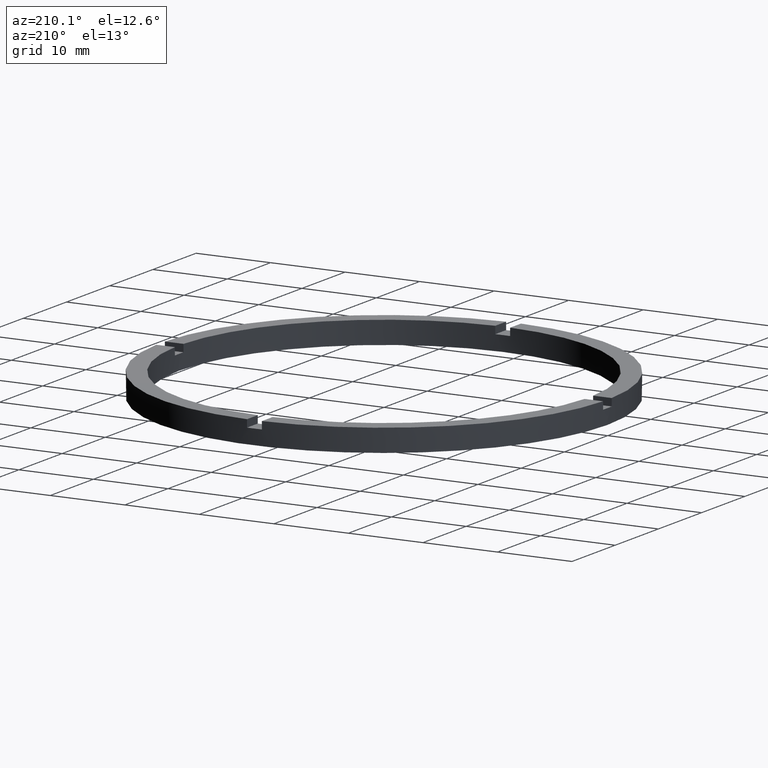
[diagram: clean part render]
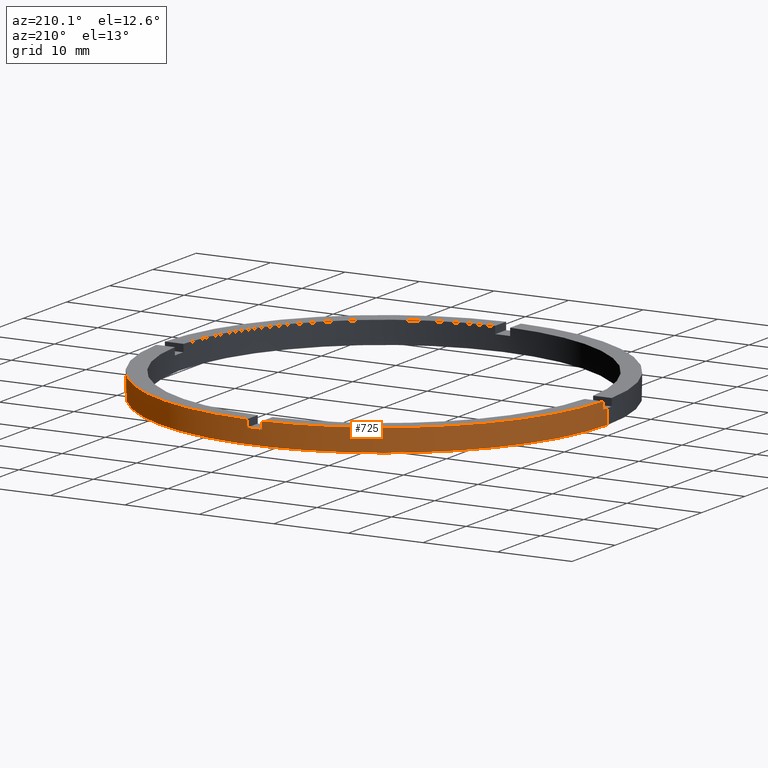
[diagram: same view with one face highlighted and labeled with its STEP entity id]
A machine part, auxiliary view. The second image highlights one B-rep face of the part: STEP entity #725.
In plain terms, the highlighted cylindrical surface (partial cylindrical patch) has radius 30 mm, axis along (-0, -0, -1).
Its self-contained STEP definition (entity closure, byte-faithful):
#4 = CARTESIAN_POINT ( 'NONE',  ( 0.000000000000000000, 0.000000000000000000, 0.000000000000000000 ) ) ;
#11 = DIRECTION ( 'NONE',  ( 0.000000000000000000, 0.000000000000000000, 1.000000000000000000 ) ) ;
#18 = EDGE_CURVE ( 'NONE', #130, #411, #672, .T. ) ;
#19 = CARTESIAN_POINT ( 'NONE',  ( 0.9999999999999729106, 29.98332870112989923, 3.000000000000000000 ) ) ;
#23 = AXIS2_PLACEMENT_3D ( 'NONE', #482, #76, #261 ) ;
#25 = AXIS2_PLACEMENT_3D ( 'NONE', #4, #469, #262 ) ;
#30 = EDGE_CURVE ( 'NONE', #235, #488, #166, .T. ) ;
#53 = VECTOR ( 'NONE', #210, 1000.000000000000000 ) ;
#66 = DIRECTION ( 'NONE',  ( 1.000000000000000000, 0.000000000000000000, 0.000000000000000000 ) ) ;
#68 = DIRECTION ( 'NONE',  ( 0.000000000000000000, 0.000000000000000000, 1.000000000000000000 ) ) ;
#76 = DIRECTION ( 'NONE',  ( 0.000000000000000000, -0.000000000000000000, 1.000000000000000000 ) ) ;
#83 = EDGE_CURVE ( 'NONE', #130, #638, #193, .T. ) ;
#103 = EDGE_CURVE ( 'NONE', #160, #745, #698, .T. ) ;
#110 = EDGE_CURVE ( 'NONE', #661, #235, #437, .T. ) ;
#130 = VERTEX_POINT ( 'NONE', #271 ) ;
#135 = CARTESIAN_POINT ( 'NONE',  ( 0.000000000000000000, 0.000000000000000000, 3.000000000000000000 ) ) ;
#146 = AXIS2_PLACEMENT_3D ( 'NONE', #590, #11, #237 ) ;
#150 = ORIENTED_EDGE ( 'NONE', *, *, #350, .F. ) ;
#156 = CARTESIAN_POINT ( 'NONE',  ( 30.00000000000000000, 3.673940397442059178E-15, 3.000000000000000000 ) ) ;
#160 = VERTEX_POINT ( 'NONE', #365 ) ;
#161 = ORIENTED_EDGE ( 'NONE', *, *, #634, .F. ) ;
#166 = CIRCLE ( 'NONE', #25, 30.00000000000000000 ) ;
#193 = CIRCLE ( 'NONE', #146, 30.00000000000000000 ) ;
#208 = VERTEX_POINT ( 'NONE', #587 ) ;
#210 = DIRECTION ( 'NONE',  ( -0.000000000000000000, -0.000000000000000000, -1.000000000000000000 ) ) ;
#219 = DIRECTION ( 'NONE',  ( 0.000000000000000000, 0.000000000000000000, 1.000000000000000000 ) ) ;
#235 = VERTEX_POINT ( 'NONE', #623 ) ;
#237 = DIRECTION ( 'NONE',  ( 1.000000000000000000, 0.000000000000000000, 0.000000000000000000 ) ) ;
#240 = ORIENTED_EDGE ( 'NONE', *, *, #18, .T. ) ;
#254 = CARTESIAN_POINT ( 'NONE',  ( 29.98332870112990278, 0.9999999999998439026, 3.000000000000000000 ) ) ;
#261 = DIRECTION ( 'NONE',  ( 1.000000000000000000, 0.000000000000000000, 0.000000000000000000 ) ) ;
#262 = DIRECTION ( 'NONE',  ( 1.000000000000000000, 0.000000000000000000, 0.000000000000000000 ) ) ;
#267 = EDGE_CURVE ( 'NONE', #666, #208, #447, .T. ) ;
#271 = CARTESIAN_POINT ( 'NONE',  ( 29.98332870112990278, 0.9999999999998439026, 3.000000000000000000 ) ) ;
#276 = CIRCLE ( 'NONE', #23, 30.00000000000000000 ) ;
#280 = FACE_OUTER_BOUND ( 'NONE', #692, .T. ) ;
#283 = DIRECTION ( 'NONE',  ( 0.000000000000000000, 0.000000000000000000, 1.000000000000000000 ) ) ;
#287 = DIRECTION ( 'NONE',  ( 1.000000000000000000, 0.000000000000000000, 0.000000000000000000 ) ) ;
#291 = DIRECTION ( 'NONE',  ( -0.000000000000000000, -0.000000000000000000, -1.000000000000000000 ) ) ;
#292 = CARTESIAN_POINT ( 'NONE',  ( -1.000000000000027089, 29.98332870112989568, 2.000000000000000000 ) ) ;
#293 = CARTESIAN_POINT ( 'NONE',  ( -29.98332870112989923, 0.9999999999999718003, 3.000000000000000000 ) ) ;
#309 = AXIS2_PLACEMENT_3D ( 'NONE', #611, #368, #574 ) ;
#310 = LINE ( 'NONE', #740, #53 ) ;
#312 = CIRCLE ( 'NONE', #662, 30.00000000000000000 ) ;
#325 = CARTESIAN_POINT ( 'NONE',  ( 30.00000000000000000, 3.673940397442059178E-15, 2.000000000000000000 ) ) ;
#345 = DIRECTION ( 'NONE',  ( -0.000000000000000000, -0.000000000000000000, -1.000000000000000000 ) ) ;
#350 = EDGE_CURVE ( 'NONE', #753, #208, #312, .T. ) ;
#356 = AXIS2_PLACEMENT_3D ( 'NONE', #704, #68, #66 ) ;
#360 = EDGE_CURVE ( 'NONE', #753, #745, #310, .T. ) ;
#365 = CARTESIAN_POINT ( 'NONE',  ( 0.9999999999999729106, 29.98332870112989923, 2.000000000000000000 ) ) ;
#368 = DIRECTION ( 'NONE',  ( -0.000000000000000000, -0.000000000000000000, -1.000000000000000000 ) ) ;
#389 = EDGE_CURVE ( 'NONE', #666, #477, #564, .T. ) ;
#408 = CARTESIAN_POINT ( 'NONE',  ( 29.98332870112990278, 0.9999999999998439026, 2.000000000000000000 ) ) ;
#411 = VERTEX_POINT ( 'NONE', #408 ) ;
#416 = DIRECTION ( 'NONE',  ( -0.000000000000000000, -0.000000000000000000, -1.000000000000000000 ) ) ;
#421 = ORIENTED_EDGE ( 'NONE', *, *, #389, .F. ) ;
#428 = VECTOR ( 'NONE', #416, 1000.000000000000000 ) ;
#429 = VECTOR ( 'NONE', #345, 1000.000000000000000 ) ;
#430 = ORIENTED_EDGE ( 'NONE', *, *, #267, .T. ) ;
#434 = ORIENTED_EDGE ( 'NONE', *, *, #83, .F. ) ;
#437 = LINE ( 'NONE', #156, #429 ) ;
#440 = CARTESIAN_POINT ( 'NONE',  ( -29.98332870112989923, 0.9999999999999718003, 2.000000000000000000 ) ) ;
#441 = CARTESIAN_POINT ( 'NONE',  ( -1.000000000000027089, 29.98332870112989568, 3.000000000000000000 ) ) ;
#447 = LINE ( 'NONE', #293, #617 ) ;
#469 = DIRECTION ( 'NONE',  ( 0.000000000000000000, 0.000000000000000000, 1.000000000000000000 ) ) ;
#477 = VERTEX_POINT ( 'NONE', #645 ) ;
#482 = CARTESIAN_POINT ( 'NONE',  ( 0.000000000000000000, 0.000000000000000000, 2.000000000000000000 ) ) ;
#486 = ORIENTED_EDGE ( 'NONE', *, *, #555, .T. ) ;
#488 = VERTEX_POINT ( 'NONE', #719 ) ;
#500 = VECTOR ( 'NONE', #291, 1000.000000000000000 ) ;
#502 = LINE ( 'NONE', #619, #500 ) ;
#513 = VECTOR ( 'NONE', #283, 1000.000000000000000 ) ;
#517 = ORIENTED_EDGE ( 'NONE', *, *, #360, .T. ) ;
#522 = AXIS2_PLACEMENT_3D ( 'NONE', #630, #596, #776 ) ;
#555 = EDGE_CURVE ( 'NONE', #160, #638, #781, .T. ) ;
#564 = CIRCLE ( 'NONE', #356, 30.00000000000000000 ) ;
#574 = DIRECTION ( 'NONE',  ( -1.000000000000000000, 0.000000000000000000, 0.000000000000000000 ) ) ;
#577 = EDGE_CURVE ( 'NONE', #477, #488, #502, .T. ) ;
#579 = CARTESIAN_POINT ( 'NONE',  ( 0.9999999999999729106, 29.98332870112989923, 3.000000000000000000 ) ) ;
#587 = CARTESIAN_POINT ( 'NONE',  ( -29.98332870112989923, 0.9999999999999718003, 3.000000000000000000 ) ) ;
#590 = CARTESIAN_POINT ( 'NONE',  ( 0.000000000000000000, 0.000000000000000000, 3.000000000000000000 ) ) ;
#596 = DIRECTION ( 'NONE',  ( 0.000000000000000000, -0.000000000000000000, 1.000000000000000000 ) ) ;
#611 = CARTESIAN_POINT ( 'NONE',  ( 0.000000000000000000, 0.000000000000000000, 3.000000000000000000 ) ) ;
#617 = VECTOR ( 'NONE', #682, 1000.000000000000000 ) ;
#619 = CARTESIAN_POINT ( 'NONE',  ( -30.00000000000000000, 0.000000000000000000, 3.000000000000000000 ) ) ;
#623 = CARTESIAN_POINT ( 'NONE',  ( 30.00000000000000000, 3.673940397442059178E-15, 0.000000000000000000 ) ) ;
#630 = CARTESIAN_POINT ( 'NONE',  ( 0.000000000000000000, 0.000000000000000000, 2.000000000000000000 ) ) ;
#634 = EDGE_CURVE ( 'NONE', #661, #411, #276, .T. ) ;
#638 = VERTEX_POINT ( 'NONE', #19 ) ;
#643 = ORIENTED_EDGE ( 'NONE', *, *, #110, .T. ) ;
#645 = CARTESIAN_POINT ( 'NONE',  ( -30.00000000000000000, 0.000000000000000000, 2.000000000000000000 ) ) ;
#661 = VERTEX_POINT ( 'NONE', #325 ) ;
#662 = AXIS2_PLACEMENT_3D ( 'NONE', #135, #219, #287 ) ;
#666 = VERTEX_POINT ( 'NONE', #440 ) ;
#672 = LINE ( 'NONE', #254, #428 ) ;
#682 = DIRECTION ( 'NONE',  ( 0.000000000000000000, 0.000000000000000000, 1.000000000000000000 ) ) ;
#692 = EDGE_LOOP ( 'NONE', ( #161, #643, #780, #760, #421, #430, #150, #517, #756, #486, #434, #240 ) ) ;
#698 = CIRCLE ( 'NONE', #522, 30.00000000000000000 ) ;
#704 = CARTESIAN_POINT ( 'NONE',  ( 0.000000000000000000, 0.000000000000000000, 2.000000000000000000 ) ) ;
#719 = CARTESIAN_POINT ( 'NONE',  ( -30.00000000000000000, 0.000000000000000000, 0.000000000000000000 ) ) ;
#725 = ADVANCED_FACE ( 'NONE', ( #280 ), #766, .T. ) ;
#740 = CARTESIAN_POINT ( 'NONE',  ( -1.000000000000027089, 29.98332870112989568, 3.000000000000000000 ) ) ;
#745 = VERTEX_POINT ( 'NONE', #292 ) ;
#753 = VERTEX_POINT ( 'NONE', #441 ) ;
#756 = ORIENTED_EDGE ( 'NONE', *, *, #103, .F. ) ;
#760 = ORIENTED_EDGE ( 'NONE', *, *, #577, .F. ) ;
#766 = CYLINDRICAL_SURFACE ( 'NONE', #309, 30.00000000000000000 ) ;
#776 = DIRECTION ( 'NONE',  ( 1.000000000000000000, 0.000000000000000000, 0.000000000000000000 ) ) ;
#780 = ORIENTED_EDGE ( 'NONE', *, *, #30, .T. ) ;
#781 = LINE ( 'NONE', #579, #513 ) ;